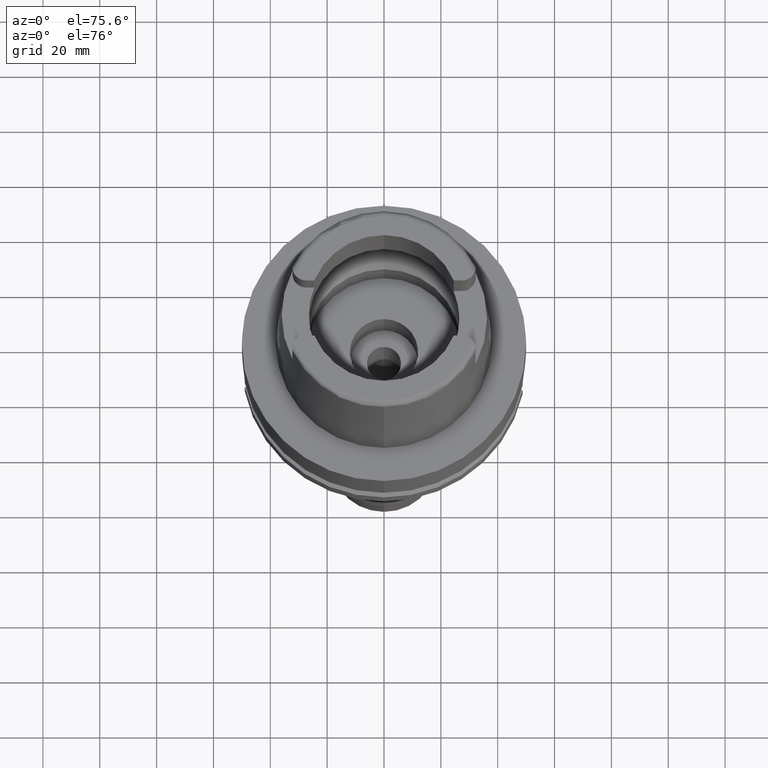
[diagram: clean part render]
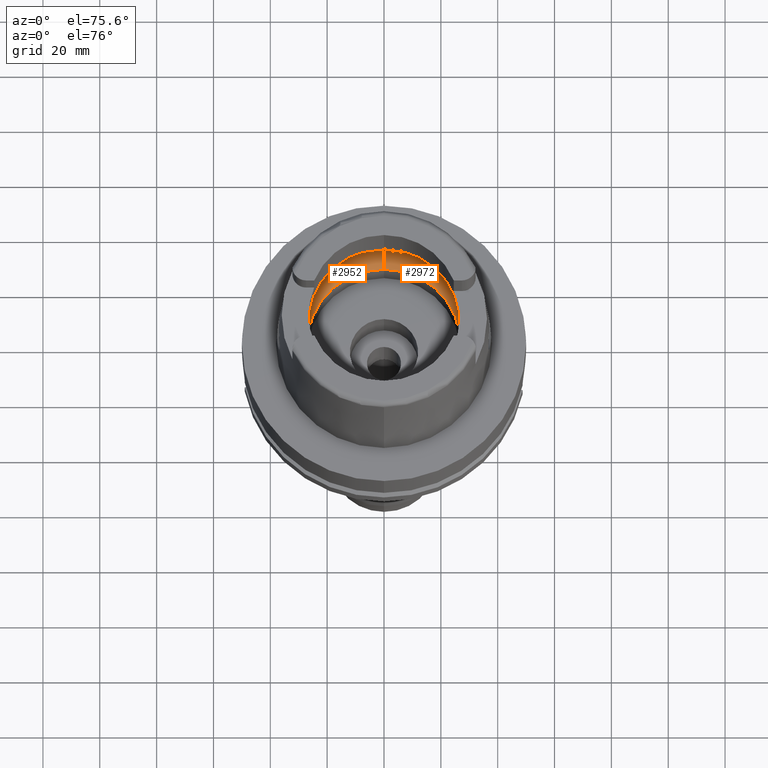
[diagram: same view with one multi-face feature highlighted, each face labeled with its STEP entity id]
A machine part, auxiliary view. The highlighted faces form ONE feature: a constant-radius fillet chain: 2 tangent blend faces with common blend radius 12 mm. The faces share edges in the B-rep.
Their STEP definitions:
[1] entity #2952 (Torus):
#580=CARTESIAN_POINT('',(-3.140918884336E1,-2.390158196044E0,9.496624327026E0));
#624=CARTESIAN_POINT('',(-3.140918884336E1,-2.390158196044E0,9.496624327026E0));
#625=CARTESIAN_POINT('',(-3.142817545704E1,-2.140654152533E0,9.388262810390E0));
#626=CARTESIAN_POINT('',(-3.145843235401E1,-1.626121130666E0,9.205188134635E0));
#627=CARTESIAN_POINT('',(-3.148416659375E1,-8.216262390445E-1,
9.037606438216E0));
#628=CARTESIAN_POINT('',(-3.148971910754E1,-2.740811097498E-1,9.E0));
#629=CARTESIAN_POINT('',(-3.148971910754E1,0.E0,9.E0));
#634=CARTESIAN_POINT('',(-3.148971910754E1,0.E0,9.E0));
#635=CARTESIAN_POINT('',(-3.148971910754E1,2.740813517952E-1,9.E0));
#636=CARTESIAN_POINT('',(-3.148416661469E1,8.216269012394E-1,9.037606318337E0));
#637=CARTESIAN_POINT('',(-3.145843209623E1,1.626127188331E0,9.205189758010E0));
#638=CARTESIAN_POINT('',(-3.142817526839E1,2.140656631637E0,9.388263887083E0));
#639=CARTESIAN_POINT('',(-3.140918884336E1,2.390158196044E0,9.496624327026E0));
#644=CARTESIAN_POINT('',(0.E0,0.E0,9.496624327026E0));
#645=DIRECTION('',(0.E0,0.E0,-1.E0));
#646=DIRECTION('',(-9.971171061384E-1,7.587803796965E-2,0.E0));
#647=AXIS2_PLACEMENT_3D('',#644,#645,#646);
#652=CARTESIAN_POINT('',(0.E0,0.E0,4.993178413022E-2));
#653=DIRECTION('',(0.E0,0.E0,1.E0));
#654=DIRECTION('',(0.E0,1.E0,0.E0));
#655=AXIS2_PLACEMENT_3D('',#652,#653,#654);
#660=CARTESIAN_POINT('',(0.E0,-1.95E1,9.496624327026E0));
#661=DIRECTION('',(-1.E0,0.E0,0.E0));
#662=DIRECTION('',(0.E0,-6.166666666667E-1,-7.872243785746E-1));
#663=AXIS2_PLACEMENT_3D('',#660,#661,#662);
#668=CARTESIAN_POINT('',(0.E0,0.E0,9.496624327026E0));
#669=DIRECTION('',(0.E0,0.E0,-1.E0));
#670=DIRECTION('',(0.E0,-1.E0,0.E0));
#671=AXIS2_PLACEMENT_3D('',#668,#669,#670);
#702=CARTESIAN_POINT('',(0.E0,1.95E1,9.496624327026E0));
#703=DIRECTION('',(1.E0,0.E0,0.E0));
#704=DIRECTION('',(0.E0,6.166666666667E-1,-7.872243785746E-1));
#705=AXIS2_PLACEMENT_3D('',#702,#703,#704);
#2310=VERTEX_POINT('',#580);
#2311=CARTESIAN_POINT('',(0.E0,-3.15E1,9.496624327026E0));
#2312=VERTEX_POINT('',#2311);
#2313=CARTESIAN_POINT('',(0.E0,3.15E1,9.496624327026E0));
#2314=VERTEX_POINT('',#2313);
#2315=CARTESIAN_POINT('',(-3.140918884336E1,2.390158196044E0,9.496624327026E0));
#2316=VERTEX_POINT('',#2315);
#2317=CARTESIAN_POINT('',(-3.148971910754E1,0.E0,9.E0));
#2318=VERTEX_POINT('',#2317);
#2323=CARTESIAN_POINT('',(0.E0,2.69E1,4.993178413023E-2));
#2324=VERTEX_POINT('',#2323);
#2325=CARTESIAN_POINT('',(0.E0,-2.69E1,4.993178413022E-2));
#2326=VERTEX_POINT('',#2325);
#2935=CARTESIAN_POINT('',(0.E0,0.E0,9.496624327026E0));
#2936=DIRECTION('',(0.E0,0.E0,1.E0));
#2937=DIRECTION('',(0.E0,1.E0,0.E0));
#2938=AXIS2_PLACEMENT_3D('',#2935,#2936,#2937);
#2939=TOROIDAL_SURFACE('',#2938,1.95E1,1.2E1);
#2940=ORIENTED_EDGE('',*,*,#2916,.T.);
#2941=ORIENTED_EDGE('',*,*,#2927,.T.);
#2942=ORIENTED_EDGE('',*,*,#2898,.T.);
#2944=ORIENTED_EDGE('',*,*,#2943,.F.);
#2946=ORIENTED_EDGE('',*,*,#2945,.T.);
#2948=ORIENTED_EDGE('',*,*,#2947,.T.);
#2949=ORIENTED_EDGE('',*,*,#2891,.T.);
#2950=EDGE_LOOP('',(#2940,#2941,#2942,#2944,#2946,#2948,#2949));
#2951=FACE_OUTER_BOUND('',#2950,.F.);
#630=B_SPLINE_CURVE_WITH_KNOTS('',3,(#624,#625,#626,#627,#628,#629),
.UNSPECIFIED.,.F.,.F.,(4,1,1,4),(0.E0,3.333333333333E-1,6.666666666667E-1,1.E0),
.UNSPECIFIED.);
#640=B_SPLINE_CURVE_WITH_KNOTS('',3,(#634,#635,#636,#637,#638,#639),
.UNSPECIFIED.,.F.,.F.,(4,1,1,4),(0.E0,3.333333333333E-1,6.666666666667E-1,1.E0),
.UNSPECIFIED.);
#648=CIRCLE('',#647,3.15E1);
#656=CIRCLE('',#655,2.69E1);
#664=CIRCLE('',#663,1.2E1);
#672=CIRCLE('',#671,3.15E1);
#706=CIRCLE('',#705,1.2E1);
#2891=EDGE_CURVE('',#2312,#2310,#672,.T.);
#2898=EDGE_CURVE('',#2316,#2314,#648,.T.);
#2916=EDGE_CURVE('',#2310,#2318,#630,.T.);
#2927=EDGE_CURVE('',#2318,#2316,#640,.T.);
#2943=EDGE_CURVE('',#2324,#2314,#706,.T.);
#2945=EDGE_CURVE('',#2324,#2326,#656,.T.);
#2947=EDGE_CURVE('',#2326,#2312,#664,.T.);
#2952=ADVANCED_FACE('',(#2951),#2939,.F.);
[2] entity #2972 (Torus):
#660=CARTESIAN_POINT('',(0.E0,-1.95E1,9.496624327026E0));
#661=DIRECTION('',(-1.E0,0.E0,0.E0));
#662=DIRECTION('',(0.E0,-6.166666666667E-1,-7.872243785746E-1));
#663=AXIS2_PLACEMENT_3D('',#660,#661,#662);
#676=CARTESIAN_POINT('',(3.148971910754E1,0.E0,9.E0));
#677=CARTESIAN_POINT('',(3.148971910754E1,-2.740816369241E-1,9.E0));
#678=CARTESIAN_POINT('',(3.148416657244E1,-8.216274657312E-1,9.037606582852E0));
#679=CARTESIAN_POINT('',(3.145843229729E1,-1.626122314408E0,9.205188491873E0));
#680=CARTESIAN_POINT('',(3.142817542026E1,-2.140654635827E0,9.388263020288E0));
#681=CARTESIAN_POINT('',(3.140918884336E1,-2.390158196044E0,9.496624327026E0));
#686=CARTESIAN_POINT('',(0.E0,0.E0,9.496624327026E0));
#687=DIRECTION('',(0.E0,0.E0,-1.E0));
#688=DIRECTION('',(9.971171061384E-1,-7.587803796965E-2,0.E0));
#689=AXIS2_PLACEMENT_3D('',#686,#687,#688);
#694=CARTESIAN_POINT('',(0.E0,0.E0,4.993178413023E-2));
#695=DIRECTION('',(0.E0,0.E0,1.E0));
#696=DIRECTION('',(0.E0,-1.E0,0.E0));
#697=AXIS2_PLACEMENT_3D('',#694,#695,#696);
#702=CARTESIAN_POINT('',(0.E0,1.95E1,9.496624327026E0));
#703=DIRECTION('',(1.E0,0.E0,0.E0));
#704=DIRECTION('',(0.E0,6.166666666667E-1,-7.872243785746E-1));
#705=AXIS2_PLACEMENT_3D('',#702,#703,#704);
#710=CARTESIAN_POINT('',(0.E0,0.E0,9.496624327026E0));
#711=DIRECTION('',(0.E0,0.E0,-1.E0));
#712=DIRECTION('',(0.E0,1.E0,0.E0));
#713=AXIS2_PLACEMENT_3D('',#710,#711,#712);
#718=CARTESIAN_POINT('',(3.140918884336E1,2.390158196044E0,9.496624327026E0));
#719=CARTESIAN_POINT('',(3.142817530553E1,2.140656143518E0,9.388263675090E0));
#720=CARTESIAN_POINT('',(3.145843215351E1,1.626125992770E0,9.205189397203E0));
#721=CARTESIAN_POINT('',(3.148416663622E1,8.216256622719E-1,9.037606172252E0));
#722=CARTESIAN_POINT('',(3.148971910754E1,2.740808193429E-1,9.E0));
#723=CARTESIAN_POINT('',(3.148971910754E1,0.E0,9.E0));
#735=CARTESIAN_POINT('',(3.140918884336E1,-2.390158196044E0,9.496624327026E0));
#766=CARTESIAN_POINT('',(3.140918884336E1,2.390158196044E0,9.496624327026E0));
#2311=CARTESIAN_POINT('',(0.E0,-3.15E1,9.496624327026E0));
#2312=VERTEX_POINT('',#2311);
#2313=CARTESIAN_POINT('',(0.E0,3.15E1,9.496624327026E0));
#2314=VERTEX_POINT('',#2313);
#2319=VERTEX_POINT('',#735);
#2321=VERTEX_POINT('',#676);
#2322=VERTEX_POINT('',#766);
#2323=CARTESIAN_POINT('',(0.E0,2.69E1,4.993178413023E-2));
#2324=VERTEX_POINT('',#2323);
#2325=CARTESIAN_POINT('',(0.E0,-2.69E1,4.993178413022E-2));
#2326=VERTEX_POINT('',#2325);
#2953=CARTESIAN_POINT('',(0.E0,0.E0,9.496624327026E0));
#2954=DIRECTION('',(0.E0,0.E0,1.E0));
#2955=DIRECTION('',(0.E0,1.E0,0.E0));
#2956=AXIS2_PLACEMENT_3D('',#2953,#2954,#2955);
#2957=TOROIDAL_SURFACE('',#2956,1.95E1,1.2E1);
#2959=ORIENTED_EDGE('',*,*,#2958,.T.);
#2961=ORIENTED_EDGE('',*,*,#2960,.T.);
#2962=ORIENTED_EDGE('',*,*,#2947,.F.);
#2964=ORIENTED_EDGE('',*,*,#2963,.T.);
#2965=ORIENTED_EDGE('',*,*,#2943,.T.);
#2967=ORIENTED_EDGE('',*,*,#2966,.T.);
#2969=ORIENTED_EDGE('',*,*,#2968,.T.);
#2970=EDGE_LOOP('',(#2959,#2961,#2962,#2964,#2965,#2967,#2969));
#2971=FACE_OUTER_BOUND('',#2970,.F.);
#664=CIRCLE('',#663,1.2E1);
#682=B_SPLINE_CURVE_WITH_KNOTS('',3,(#676,#677,#678,#679,#680,#681),
.UNSPECIFIED.,.F.,.F.,(4,1,1,4),(0.E0,3.333333333333E-1,6.666666666667E-1,1.E0),
.UNSPECIFIED.);
#690=CIRCLE('',#689,3.15E1);
#698=CIRCLE('',#697,2.69E1);
#706=CIRCLE('',#705,1.2E1);
#714=CIRCLE('',#713,3.15E1);
#724=B_SPLINE_CURVE_WITH_KNOTS('',3,(#718,#719,#720,#721,#722,#723),
.UNSPECIFIED.,.F.,.F.,(4,1,1,4),(0.E0,3.333333333333E-1,6.666666666667E-1,1.E0),
.UNSPECIFIED.);
#2943=EDGE_CURVE('',#2324,#2314,#706,.T.);
#2947=EDGE_CURVE('',#2326,#2312,#664,.T.);
#2958=EDGE_CURVE('',#2321,#2319,#682,.T.);
#2960=EDGE_CURVE('',#2319,#2312,#690,.T.);
#2963=EDGE_CURVE('',#2326,#2324,#698,.T.);
#2966=EDGE_CURVE('',#2314,#2322,#714,.T.);
#2968=EDGE_CURVE('',#2322,#2321,#724,.T.);
#2972=ADVANCED_FACE('',(#2971),#2957,.F.);